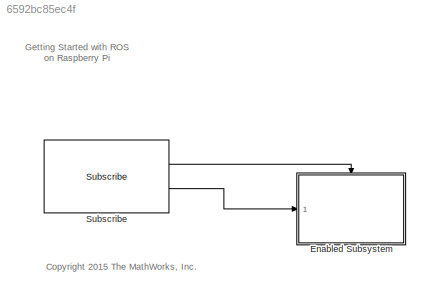
MODEL slx_6592bc85ec4f
KIND model
CONFIG AbsTol = auto
CONFIG EnableMultiTasking = on
CONFIG FixedStep = auto
CONFIG MaxStep = auto
CONFIG MinStep = auto
CONFIG RelTol = 1e-3
CONFIG SampleTimeConstraint = Unconstrained
CONFIG Solver = FixedStepAuto
CONFIG SolverName = FixedStepAuto
CONFIG StartTime = 0.0
CONFIG StopTime = 10.0
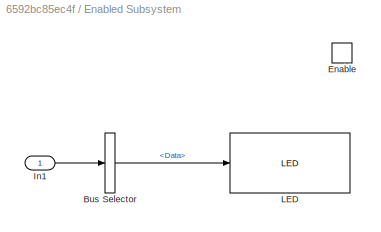
BLOCK [SubSystem] Enabled Subsystem
  Ports = [1, 0, 1]
  RequestExecContextInheritance = off
BLOCK [BusSelector] Enabled Subsystem/Bus Selector
  DialogController = Simulink.DDGSource_BusSelector
  OutputAsBus = off
  OutputSignals = Data
  Ports = [1, 1]
BLOCK [EnablePort] Enabled Subsystem/Enable
  Ports = []
BLOCK [Inport] Enabled Subsystem/In1
  IconDisplay = Port number
BLOCK [Reference] Enabled Subsystem/LED  REF=embdlinuxlib/LED
  Ports = [1]
  SourceBlock = embdlinuxlib/LED
  SourceProductBaseCode = RASPPI
  SourceProductName = Simulink Support Package for Raspberry Pi Hardware
  SourceType = LED Write
BLOCK [Reference] Subscribe  REF=robotlib/Subscribe
  Ports = [0, 2]
  SourceBlock = robotlib/Subscribe
  SourceProductBaseCode = RO
  SourceProductName = Robotics System Toolbox
  SourceType = ROS Subscribe
ANNOTATION (root): <copyright redacted>
ANNOTATION (root): Getting Started with ROS on Raspberry Pi
LINE Enabled Subsystem/Bus Selector:1 -> Enabled Subsystem/LED:1
LINE Enabled Subsystem/In1:1 -> Enabled Subsystem/Bus Selector:1
LINE Subscribe:1 -> Enabled Subsystem:enable
LINE Subscribe:2 -> Enabled Subsystem:1
